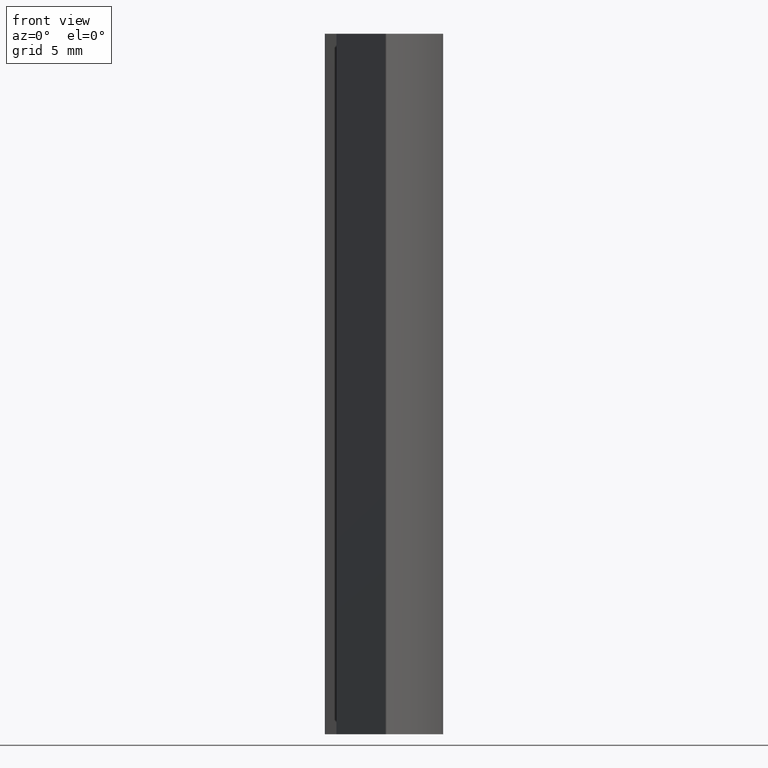
[diagram: clean part render]
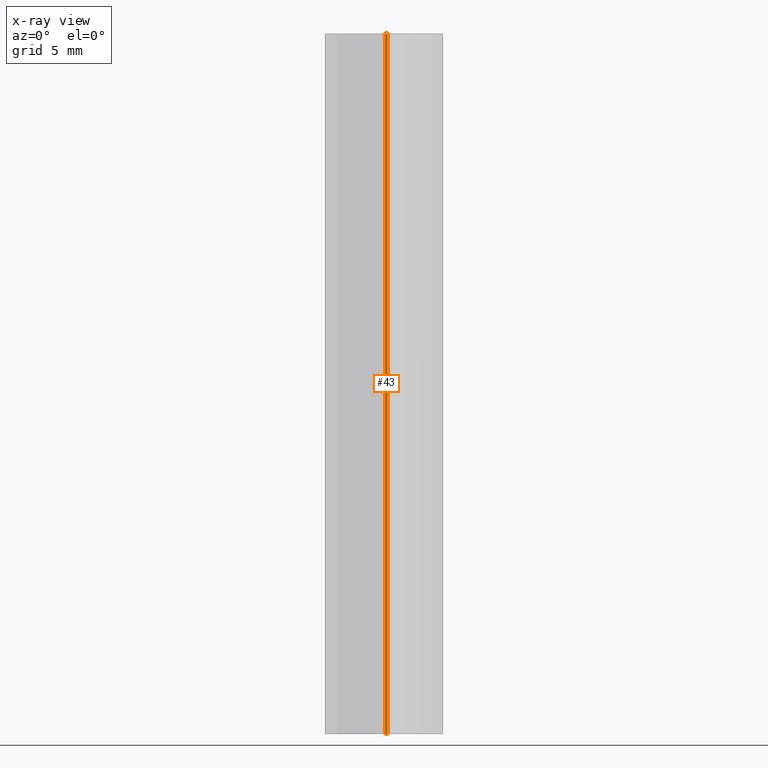
[diagram: x-ray — body ghosted, one internal face saturated and labeled with its STEP entity id]
A machine part, front view, then the same camera in x-ray: the body is ghosted and one INTERNAL B-rep face — a face not visible from any outside direction — is saturated and labeled: STEP entity #43.
In plain terms, the highlighted cylindrical surface (edge-blend (fillet) strip) has radius 0.1 mm, axis along (0, 0, 1).
Its self-contained STEP definition (entity closure, byte-faithful):
#2=CARTESIAN_POINT('',(-0.068392333757039,0.072955388308102,0.0));
#3=DIRECTION('',(0.0,0.0,1.0));
#4=DIRECTION('',(-0.746680531136745,-0.665182820299313,0.0));
#5=AXIS2_PLACEMENT_3D('',#2,#3,#4);
#6=CYLINDRICAL_SURFACE('',#5,0.099999999999601);
#7=CARTESIAN_POINT('',(-0.143060386870415,0.006437106278437,0.0));
#8=VERTEX_POINT('',#7);
#9=CARTESIAN_POINT('',(0.0,0.0,0.0));
#10=VERTEX_POINT('',#9);
#11=CARTESIAN_POINT('',(-0.068392333757039,0.072955388308102,0.0));
#12=DIRECTION('',(0.0,0.0,1.0));
#13=DIRECTION('',(-0.746680531136745,-0.665182820299313,0.0));
#14=AXIS2_PLACEMENT_3D('',#11,#12,#13);
#15=CIRCLE('',#14,0.099999999999601);
#16=EDGE_CURVE('',#8,#10,#15,.T.);
#17=ORIENTED_EDGE('',*,*,#16,.T.);
#18=CARTESIAN_POINT('',(0.0,0.0,50.0));
#19=VERTEX_POINT('',#18);
#20=CARTESIAN_POINT('',(0.0,0.0,0.0));
#21=DIRECTION('',(0.0,0.0,1.0));
#22=VECTOR('',#21,50.0);
#23=LINE('',#20,#22);
#24=EDGE_CURVE('',#10,#19,#23,.T.);
#25=ORIENTED_EDGE('',*,*,#24,.T.);
#26=CARTESIAN_POINT('',(-0.143060386870415,0.006437106278437,50.0));
#27=VERTEX_POINT('',#26);
#28=CARTESIAN_POINT('',(-0.068392333757039,0.072955388308102,50.0));
#29=DIRECTION('',(0.0,0.0,1.0));
#30=DIRECTION('',(-0.746680531136745,-0.665182820299313,0.0));
#31=AXIS2_PLACEMENT_3D('',#28,#29,#30);
#32=CIRCLE('',#31,0.099999999999601);
#33=EDGE_CURVE('',#27,#19,#32,.T.);
#34=ORIENTED_EDGE('',*,*,#33,.F.);
#35=CARTESIAN_POINT('',(-0.143060386870415,0.006437106278437,0.0));
#36=DIRECTION('',(0.0,0.0,1.0));
#37=VECTOR('',#36,50.0);
#38=LINE('',#35,#37);
#39=EDGE_CURVE('',#8,#27,#38,.T.);
#40=ORIENTED_EDGE('',*,*,#39,.F.);
#41=EDGE_LOOP('',(#17,#25,#34,#40));
#42=FACE_OUTER_BOUND('',#41,.T.);
#43=ADVANCED_FACE('',(#42),#6,.T.);